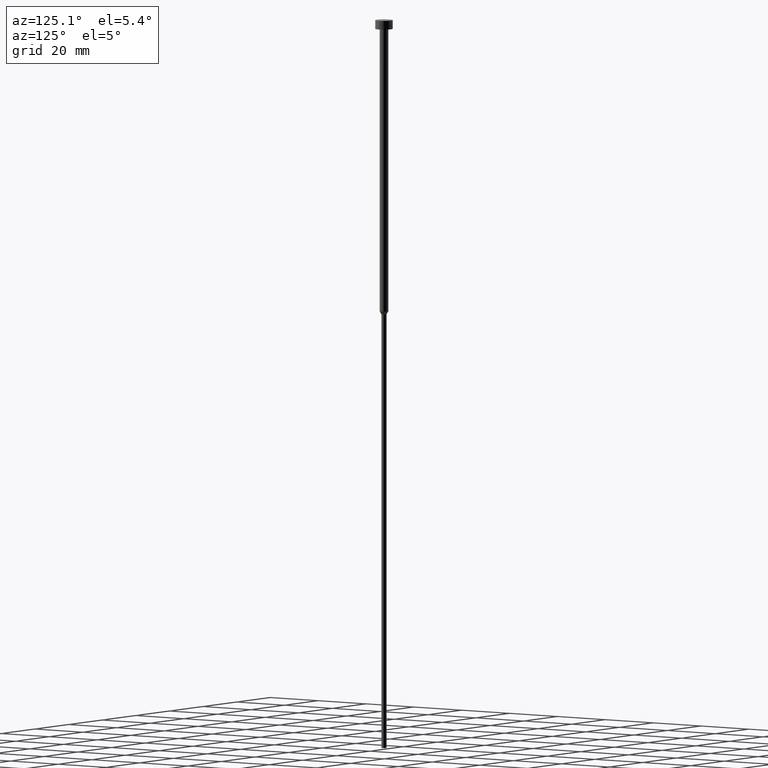
[diagram: clean part render]
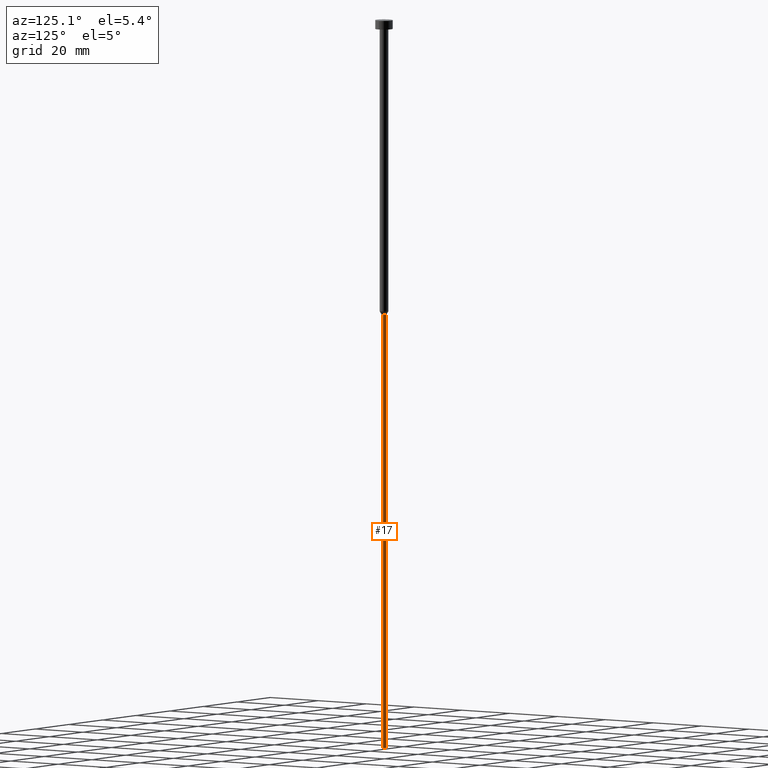
[diagram: same view with one face highlighted and labeled with its STEP entity id]
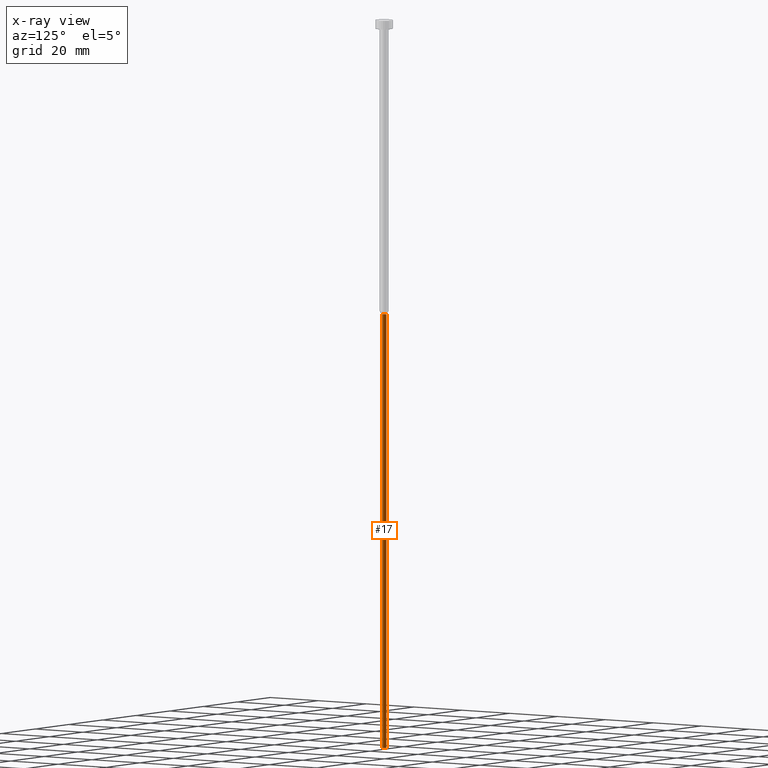
[diagram: x-ray of the same camera — body ghosted, the highlighted face saturated]
A machine part, auxiliary view. The second image highlights one B-rep face of the part: STEP entity #17.
The next image is the same camera in x-ray: the body ghosted, the highlighted face saturated — about 0% of this face is hidden behind the body in this view.
In plain terms, the highlighted cylindrical surface (edge-blend (fillet) strip) has radius 0.9 mm, axis along (-0, -0, 1).
Its self-contained STEP definition (entity closure, byte-faithful):
#8 = VERTEX_POINT ( 'NONE', #147 ) ;
#12 = DIRECTION ( 'NONE',  ( -0.000000000000000000, -0.000000000000000000, 1.000000000000000000 ) ) ;
#13 = AXIS2_PLACEMENT_3D ( 'NONE', #258, #12, #342 ) ;
#15 = VECTOR ( 'NONE', #135, 1000.000000000000000 ) ;
#17 = ADVANCED_FACE ( 'NONE', ( #223 ), #93, .T. ) ;
#35 = CARTESIAN_POINT ( 'NONE',  ( -0.9000000000000000222, 1.102182119232617788E-16, 0.000000000000000000 ) ) ;
#45 = DIRECTION ( 'NONE',  ( 1.000000000000000000, 0.000000000000000000, 0.000000000000000000 ) ) ;
#53 = CARTESIAN_POINT ( 'NONE',  ( 0.9000000000000000222, 0.000000000000000000, -101.0392304845413349 ) ) ;
#70 = CARTESIAN_POINT ( 'NONE',  ( 0.9000000000000000222, 0.000000000000000000, -250.0000000000000000 ) ) ;
#77 = DIRECTION ( 'NONE',  ( 1.000000000000000000, 0.000000000000000000, 0.000000000000000000 ) ) ;
#84 = EDGE_CURVE ( 'NONE', #110, #8, #103, .T. ) ;
#86 = AXIS2_PLACEMENT_3D ( 'NONE', #234, #351, #77 ) ;
#88 = AXIS2_PLACEMENT_3D ( 'NONE', #225, #169, #45 ) ;
#93 = CYLINDRICAL_SURFACE ( 'NONE', #13, 0.9000000000000000222 ) ;
#100 = ORIENTED_EDGE ( 'NONE', *, *, #220, .T. ) ;
#103 = CIRCLE ( 'NONE', #86, 0.9000000000000000222 ) ;
#110 = VERTEX_POINT ( 'NONE', #70 ) ;
#133 = CARTESIAN_POINT ( 'NONE',  ( -0.9000000000000000222, 1.102182119232617788E-16, -101.0392304845413349 ) ) ;
#135 = DIRECTION ( 'NONE',  ( -0.000000000000000000, -0.000000000000000000, 1.000000000000000000 ) ) ;
#144 = VERTEX_POINT ( 'NONE', #53 ) ;
#147 = CARTESIAN_POINT ( 'NONE',  ( -0.9000000000000000222, 1.102182119232617788E-16, -250.0000000000000000 ) ) ;
#167 = LINE ( 'NONE', #172, #206 ) ;
#169 = DIRECTION ( 'NONE',  ( -0.000000000000000000, -0.000000000000000000, 1.000000000000000000 ) ) ;
#172 = CARTESIAN_POINT ( 'NONE',  ( 0.9000000000000000222, 0.000000000000000000, 0.000000000000000000 ) ) ;
#173 = EDGE_LOOP ( 'NONE', ( #261, #100, #309, #191 ) ) ;
#191 = ORIENTED_EDGE ( 'NONE', *, *, #306, .F. ) ;
#197 = DIRECTION ( 'NONE',  ( -0.000000000000000000, -0.000000000000000000, 1.000000000000000000 ) ) ;
#206 = VECTOR ( 'NONE', #197, 1000.000000000000000 ) ;
#220 = EDGE_CURVE ( 'NONE', #8, #291, #279, .T. ) ;
#223 = FACE_OUTER_BOUND ( 'NONE', #173, .T. ) ;
#225 = CARTESIAN_POINT ( 'NONE',  ( 0.000000000000000000, 0.000000000000000000, -101.0392304845413349 ) ) ;
#234 = CARTESIAN_POINT ( 'NONE',  ( 0.000000000000000000, 0.000000000000000000, -250.0000000000000000 ) ) ;
#258 = CARTESIAN_POINT ( 'NONE',  ( 0.000000000000000000, 0.000000000000000000, 0.000000000000000000 ) ) ;
#261 = ORIENTED_EDGE ( 'NONE', *, *, #84, .T. ) ;
#279 = LINE ( 'NONE', #35, #15 ) ;
#291 = VERTEX_POINT ( 'NONE', #133 ) ;
#296 = CIRCLE ( 'NONE', #88, 0.9000000000000000222 ) ;
#306 = EDGE_CURVE ( 'NONE', #110, #144, #167, .T. ) ;
#309 = ORIENTED_EDGE ( 'NONE', *, *, #347, .F. ) ;
#342 = DIRECTION ( 'NONE',  ( 1.000000000000000000, 0.000000000000000000, 0.000000000000000000 ) ) ;
#347 = EDGE_CURVE ( 'NONE', #144, #291, #296, .T. ) ;
#351 = DIRECTION ( 'NONE',  ( -0.000000000000000000, -0.000000000000000000, 1.000000000000000000 ) ) ;